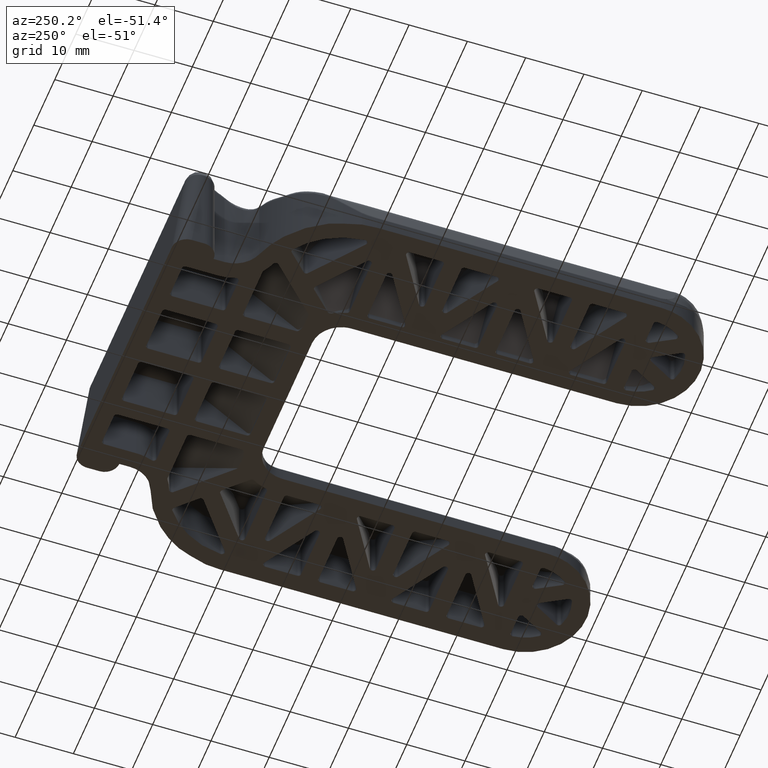
[diagram: clean part render]
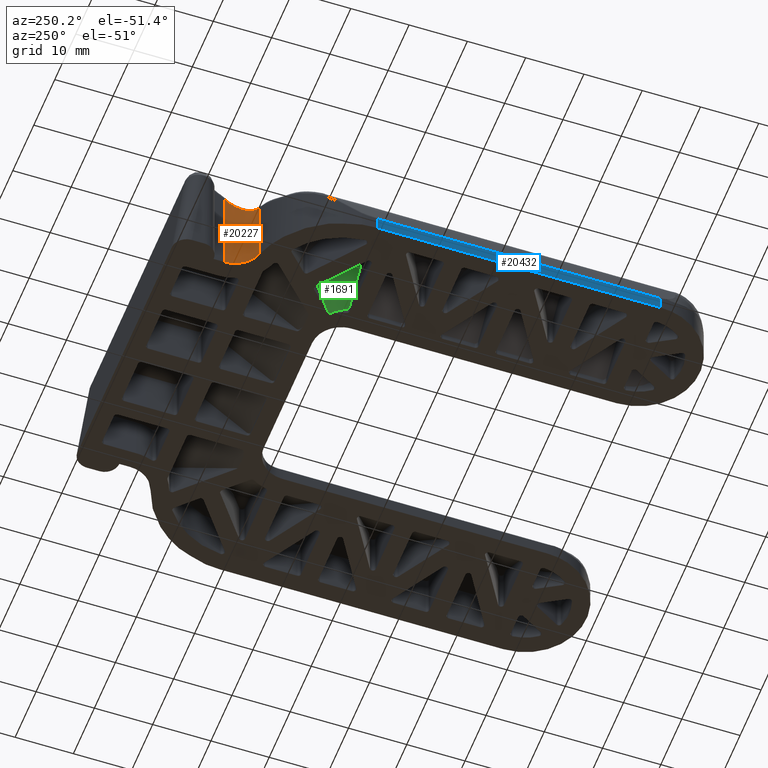
[diagram: same view with three faces highlighted in distinct colors, each labeled with its STEP entity id]
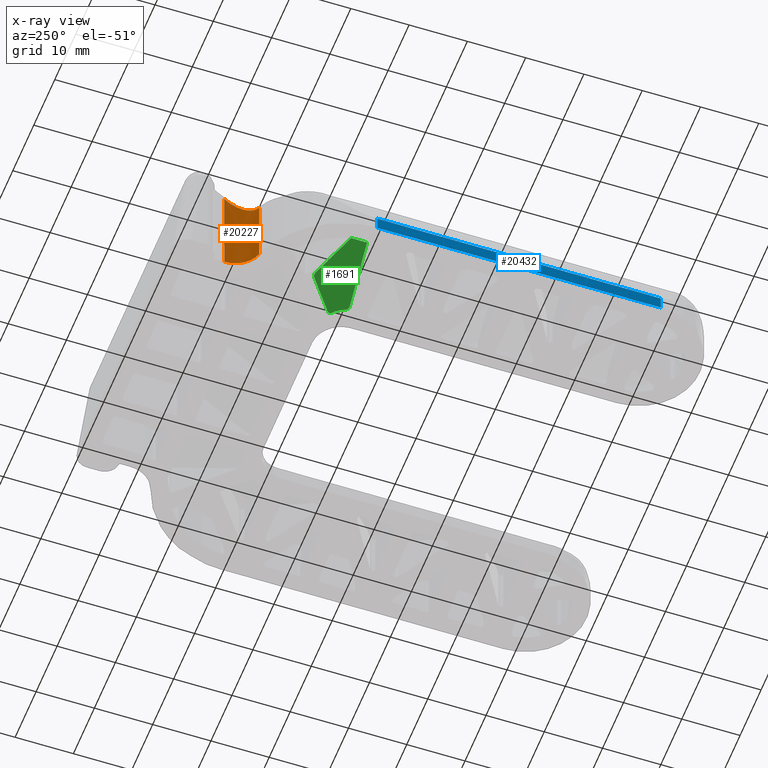
[diagram: x-ray of the same camera — body ghosted, the three highlighted faces saturated]
A machine part, auxiliary view with three faces highlighted in distinct colors.
The next image is the same camera in x-ray (body ghosted, the three faces saturated) — at least one of them is partly hidden behind the body in this view.
Their STEP definitions:

[orange] entity #20227 — the highlighted face is a freeform B-spline surface patch.
#18630=CARTESIAN_POINT('',(-25.909090870622450,-13.765438535865020,11.979661164408521));
#18631=VERTEX_POINT('',#18630);
#18703=CARTESIAN_POINT('',(-22.500000000000000,-9.025290000000000,16.261287277234850));
#18704=VERTEX_POINT('',#18703);
#18718=CARTESIAN_POINT('',(-25.909090870622450,-13.765438535865020,11.979661164408521));
#18719=CARTESIAN_POINT('',(-22.500000000000004,-12.621264723758937,13.013157143374425));
#18720=CARTESIAN_POINT('',(-22.500000000000000,-9.025290000000002,16.261287277234850));
#18728=(BOUNDED_CURVE()B_SPLINE_CURVE(2,(#18718,#18719,#18720),.UNSPECIFIED.,.F.,.U.)CURVE()GEOMETRIC_REPRESENTATION_ITEM()QUASI_UNIFORM_CURVE()RATIONAL_B_SPLINE_CURVE((1.0,0.811844143763059,1.0))REPRESENTATION_ITEM(''));
#18729=EDGE_CURVE('',#18631,#18704,#18728,.T.);
#20166=CARTESIAN_POINT('',(-25.909090870622450,-13.765438535865020,0.0));
#20167=VERTEX_POINT('',#20166);
#20168=CARTESIAN_POINT('',(-25.909090870622450,-13.765438535865020,0.0));
#20169=CARTESIAN_POINT('',(-25.909090870622450,-13.765438535865020,11.979661164408521));
#20170=QUASI_UNIFORM_CURVE('',1,(#20168,#20169),.UNSPECIFIED.,.F.,.U.);
#20171=EDGE_CURVE('',#20167,#18631,#20170,.T.);
#20189=CARTESIAN_POINT('',(-22.500190384679140,-8.981657322508134,-0.406532181930872));
#20190=CARTESIAN_POINT('',(-22.500190384679140,-8.981657322508134,16.677982763713999));
#20191=CARTESIAN_POINT('',(-22.466709853681852,-12.818146175100532,-0.406532181930872));
#20192=CARTESIAN_POINT('',(-22.466709853681852,-12.818146175100532,16.677982763713999));
#20193=CARTESIAN_POINT('',(-26.163808119608721,-13.843442266043120,-0.406532181930872));
#20194=CARTESIAN_POINT('',(-26.163808119608721,-13.843442266043120,16.677982763713999));
#20202=(BOUNDED_SURFACE()B_SPLINE_SURFACE(1,2,((#20189,#20191,#20193),(#20190,#20192,#20194)),.UNSPECIFIED.,.F.,.F.,.U.)B_SPLINE_SURFACE_WITH_KNOTS((2,2),(3,3),(0.0,17.084514945644869),(0.0,6.789085177267515),.UNSPECIFIED.)GEOMETRIC_REPRESENTATION_ITEM()RATIONAL_B_SPLINE_SURFACE(((1.0,0.793353340291235,1.0),(1.0,0.793353340291235,1.0)))REPRESENTATION_ITEM('')SURFACE());
#20203=ORIENTED_EDGE('',*,*,#20171,.T.);
#20204=ORIENTED_EDGE('',*,*,#18729,.T.);
#20205=CARTESIAN_POINT('',(-22.500000000000000,-9.025290000000000,0.0));
#20206=VERTEX_POINT('',#20205);
#20207=CARTESIAN_POINT('',(-22.500000000000000,-9.025290000000000,0.0));
#20208=CARTESIAN_POINT('',(-22.500000000000000,-9.025290000000000,16.261287277234850));
#20209=QUASI_UNIFORM_CURVE('',1,(#20207,#20208),.UNSPECIFIED.,.F.,.U.);
#20210=EDGE_CURVE('',#20206,#18704,#20209,.T.);
#20211=ORIENTED_EDGE('',*,*,#20210,.F.);
#20212=CARTESIAN_POINT('',(-22.500000000000000,-9.025290000000000,0.0));
#20213=CARTESIAN_POINT('',(-22.499999999999996,-12.621264730357622,0.0));
#20214=CARTESIAN_POINT('',(-25.909090870622450,-13.765438535865011,0.0));
#20222=(BOUNDED_CURVE()B_SPLINE_CURVE(2,(#20212,#20213,#20214),.UNSPECIFIED.,.F.,.U.)CURVE()GEOMETRIC_REPRESENTATION_ITEM()QUASI_UNIFORM_CURVE()RATIONAL_B_SPLINE_CURVE((1.0,0.811844143255191,1.0))REPRESENTATION_ITEM(''));
#20223=EDGE_CURVE('',#20206,#20167,#20222,.T.);
#20224=ORIENTED_EDGE('',*,*,#20223,.T.);
#20225=EDGE_LOOP('',(#20203,#20204,#20211,#20224));
#20226=FACE_OUTER_BOUND('',#20225,.T.);
#20227=ADVANCED_FACE('',(#20226),#20202,.F.);

[blue] entity #20432 — the highlighted face is a freeform B-spline surface patch.
#18164=CARTESIAN_POINT('',(-37.500000000000000,-29.881943000000000,2.356955658325720));
#18165=VERTEX_POINT('',#18164);
#18210=CARTESIAN_POINT('',(-37.500000000000000,-78.500000000000000,2.356955658325710));
#18211=VERTEX_POINT('',#18210);
#18224=CARTESIAN_POINT('',(-37.500000000000000,-78.500000000000000,2.356955658325710));
#18225=CARTESIAN_POINT('',(-37.500000000000000,-29.881943000000000,2.356955658325720));
#18226=QUASI_UNIFORM_CURVE('',1,(#18224,#18225),.UNSPECIFIED.,.F.,.U.);
#18227=EDGE_CURVE('',#18211,#18165,#18226,.T.);
#18945=CARTESIAN_POINT('',(-37.500000000000000,-78.500000000000000,4.806580E-015));
#18946=VERTEX_POINT('',#18945);
#18947=CARTESIAN_POINT('',(-37.500000000000000,-78.500000000000000,4.806580E-015));
#18948=CARTESIAN_POINT('',(-37.500000000000000,-78.500000000000000,2.356955658325710));
#18949=QUASI_UNIFORM_CURVE('',1,(#18947,#18948),.UNSPECIFIED.,.F.,.U.);
#18950=EDGE_CURVE('',#18946,#18211,#18949,.T.);
#20274=CARTESIAN_POINT('',(-37.500000000000000,-29.881943000000000,0.0));
#20275=VERTEX_POINT('',#20274);
#20276=CARTESIAN_POINT('',(-37.500000000000000,-29.881943000000000,0.0));
#20277=CARTESIAN_POINT('',(-37.500000000000000,-29.881943000000000,2.356955658325720));
#20278=QUASI_UNIFORM_CURVE('',1,(#20276,#20277),.UNSPECIFIED.,.F.,.U.);
#20279=EDGE_CURVE('',#20275,#18165,#20278,.T.);
#20417=CARTESIAN_POINT('',(-37.500000000000000,-27.453471147081231,2.474685588890852));
#20418=CARTESIAN_POINT('',(-37.500000000000000,-80.928473156956670,2.474685588890852));
#20419=CARTESIAN_POINT('',(-37.500000000000000,-27.453471147081231,-0.117729993783609));
#20420=CARTESIAN_POINT('',(-37.500000000000000,-80.928473156956670,-0.117729993783609));
#20421=B_SPLINE_SURFACE_WITH_KNOTS('',1,1,((#20417,#20419),(#20418,#20420)),.UNSPECIFIED.,.F.,.F.,.U.,(2,2),(2,2),(0.0,53.475002009875439),(0.0,2.592415582674462),.UNSPECIFIED.);
#20422=ORIENTED_EDGE('',*,*,#18950,.T.);
#20423=ORIENTED_EDGE('',*,*,#18227,.T.);
#20424=ORIENTED_EDGE('',*,*,#20279,.F.);
#20425=CARTESIAN_POINT('',(-37.500000000000000,-29.881943000000000,0.0));
#20426=CARTESIAN_POINT('',(-37.500000000000000,-78.500000000000000,4.806580E-015));
#20427=QUASI_UNIFORM_CURVE('',1,(#20425,#20426),.UNSPECIFIED.,.F.,.U.);
#20428=EDGE_CURVE('',#20275,#18946,#20427,.T.);
#20429=ORIENTED_EDGE('',*,*,#20428,.T.);
#20430=EDGE_LOOP('',(#20422,#20423,#20424,#20429));
#20431=FACE_OUTER_BOUND('',#20430,.T.);
#20432=ADVANCED_FACE('',(#20431),#20421,.F.);

[green] entity #1691 — the highlighted face is a freeform B-spline surface patch.
#1596=CARTESIAN_POINT('',(-28.558157178433810,-24.108095485193960,8.396517618800827));
#1597=CARTESIAN_POINT('',(-17.765768141798581,-24.108095485193960,-0.334808806434859));
#1598=CARTESIAN_POINT('',(-28.558157178433810,-31.851660379194438,8.396517618800827));
#1599=CARTESIAN_POINT('',(-17.765768141798581,-31.851660379194438,-0.334808806434859));
#1600=B_SPLINE_SURFACE_WITH_KNOTS('',1,1,((#1596,#1598),(#1597,#1599)),.UNSPECIFIED.,.F.,.F.,.U.,(2,2),(2,2),(0.0,13.882064769410320),(0.0,7.743564894000482),.UNSPECIFIED.);
#1601=CARTESIAN_POINT('',(-19.275393713815649,-31.117647058823501,0.886517964164391));
#1602=VERTEX_POINT('',#1601);
#1603=CARTESIAN_POINT('',(-18.329058384854651,-28.832991291556151,0.120907807150572));
#1604=VERTEX_POINT('',#1603);
#1605=CARTESIAN_POINT('',(-19.275393713815649,-31.117647058823501,0.886517964164391));
#1606=CARTESIAN_POINT('',(-18.980926761270236,-29.901298922582232,0.648286459036880));
#1607=CARTESIAN_POINT('',(-18.329058384854630,-28.832991291556180,0.120907807150590));
#1615=(BOUNDED_CURVE()B_SPLINE_CURVE(2,(#1605,#1606,#1607),.UNSPECIFIED.,.F.,.U.)CURVE()GEOMETRIC_REPRESENTATION_ITEM()QUASI_UNIFORM_CURVE()RATIONAL_B_SPLINE_CURVE((1.0,0.987984053574828,1.0))REPRESENTATION_ITEM(''));
#1616=EDGE_CURVE('',#1602,#1604,#1615,.T.);
#1617=ORIENTED_EDGE('',*,*,#1616,.F.);
#1618=CARTESIAN_POINT('',(-19.761355999999999,-31.500000000000000,1.279674227956050));
#1619=VERTEX_POINT('',#1618);
#1620=CARTESIAN_POINT('',(-19.275393713815660,-31.117647058823501,0.886517964164333));
#1621=CARTESIAN_POINT('',(-19.367957924694405,-31.500000000000004,0.961404843958338));
#1622=CARTESIAN_POINT('',(-19.761355820929150,-31.500000000000000,1.279674083082938));
#1630=(BOUNDED_CURVE()B_SPLINE_CURVE(2,(#1620,#1621,#1622),.UNSPECIFIED.,.F.,.U.)CURVE()GEOMETRIC_REPRESENTATION_ITEM()QUASI_UNIFORM_CURVE()RATIONAL_B_SPLINE_CURVE((1.0,0.785905247993356,1.0))REPRESENTATION_ITEM(''));
#1631=EDGE_CURVE('',#1602,#1619,#1630,.T.);
#1632=ORIENTED_EDGE('',*,*,#1631,.T.);
#1633=CARTESIAN_POINT('',(-28.068040076682649,-31.500000000000000,7.999999999999889));
#1634=VERTEX_POINT('',#1633);
#1635=CARTESIAN_POINT('',(-28.068040076682649,-31.500000000000000,7.999999999999889));
#1636=CARTESIAN_POINT('',(-19.761355999999999,-31.500000000000000,1.279674227956050));
#1637=QUASI_UNIFORM_CURVE('',1,(#1635,#1636),.UNSPECIFIED.,.F.,.U.);
#1638=EDGE_CURVE('',#1634,#1619,#1637,.T.);
#1639=ORIENTED_EDGE('',*,*,#1638,.F.);
#1640=CARTESIAN_POINT('',(-28.068040076682649,-28.746889952773000,7.999999999999889));
#1641=VERTEX_POINT('',#1640);
#1642=CARTESIAN_POINT('',(-28.068040076682649,-31.500000000000000,7.999999999999889));
#1643=CARTESIAN_POINT('',(-28.068040076682649,-28.746889952773000,7.999999999999889));
#1644=QUASI_UNIFORM_CURVE('',1,(#1642,#1643),.UNSPECIFIED.,.F.,.U.);
#1645=EDGE_CURVE('',#1634,#1641,#1644,.T.);
#1646=ORIENTED_EDGE('',*,*,#1645,.T.);
#1647=CARTESIAN_POINT('',(-22.675110816768498,-24.564617857902100,3.636978467262855));
#1648=VERTEX_POINT('',#1647);
#1649=CARTESIAN_POINT('',(-22.675110816768498,-24.564617857902100,3.636978467262855));
#1650=CARTESIAN_POINT('',(-28.068040076682649,-28.746889952773000,7.999999999999889));
#1651=QUASI_UNIFORM_CURVE('',1,(#1649,#1650),.UNSPECIFIED.,.F.,.U.);
#1652=EDGE_CURVE('',#1648,#1641,#1651,.T.);
#1653=ORIENTED_EDGE('',*,*,#1652,.F.);
#1654=CARTESIAN_POINT('',(-22.015145598203802,-24.606174401796100,3.103049257239920));
#1655=VERTEX_POINT('',#1654);
#1656=CARTESIAN_POINT('',(-22.675110816768498,-24.564617857902100,3.636978467262855));
#1657=CARTESIAN_POINT('',(-22.326811644994109,-24.294508268739222,3.355195281716191));
#1658=CARTESIAN_POINT('',(-22.015145598203809,-24.606174401796100,3.103049257239920));
#1666=(BOUNDED_CURVE()B_SPLINE_CURVE(2,(#1656,#1657,#1658),.UNSPECIFIED.,.F.,.U.)CURVE()GEOMETRIC_REPRESENTATION_ITEM()QUASI_UNIFORM_CURVE()RATIONAL_B_SPLINE_CURVE((1.0,0.750145961759682,1.0))REPRESENTATION_ITEM(''));
#1667=EDGE_CURVE('',#1648,#1655,#1666,.T.);
#1668=ORIENTED_EDGE('',*,*,#1667,.T.);
#1669=CARTESIAN_POINT('',(-18.402321094384451,-28.218999905615451,0.180179264983621));
#1670=VERTEX_POINT('',#1669);
#1671=CARTESIAN_POINT('',(-18.402321094384451,-28.218999905615451,0.180179264983621));
#1672=CARTESIAN_POINT('',(-22.015145598203802,-24.606174401796100,3.103049257239920));
#1673=QUASI_UNIFORM_CURVE('',1,(#1671,#1672),.UNSPECIFIED.,.F.,.U.);
#1674=EDGE_CURVE('',#1670,#1655,#1673,.T.);
#1675=ORIENTED_EDGE('',*,*,#1674,.F.);
#1676=CARTESIAN_POINT('',(-18.402321094384469,-28.218999905615441,0.180179264983599));
#1677=CARTESIAN_POINT('',(-18.124146868441812,-28.497174208554405,-0.044870996042745));
#1678=CARTESIAN_POINT('',(-18.329058384854630,-28.832991291556130,0.120907807150599));
#1686=(BOUNDED_CURVE()B_SPLINE_CURVE(2,(#1676,#1677,#1678),.UNSPECIFIED.,.F.,.U.)CURVE()GEOMETRIC_REPRESENTATION_ITEM()QUASI_UNIFORM_CURVE()RATIONAL_B_SPLINE_CURVE((1.0,0.785905308152952,1.0))REPRESENTATION_ITEM(''));
#1687=EDGE_CURVE('',#1670,#1604,#1686,.T.);
#1688=ORIENTED_EDGE('',*,*,#1687,.T.);
#1689=EDGE_LOOP('',(#1617,#1632,#1639,#1646,#1653,#1668,#1675,#1688));
#1690=FACE_OUTER_BOUND('',#1689,.T.);
#1691=ADVANCED_FACE('',(#1690),#1600,.T.);